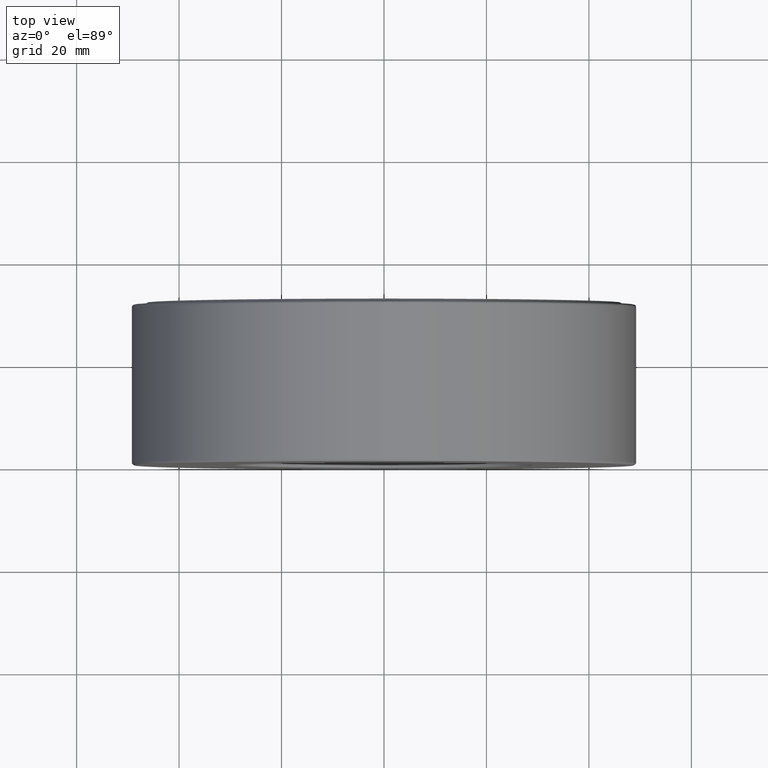
[diagram: clean part render]
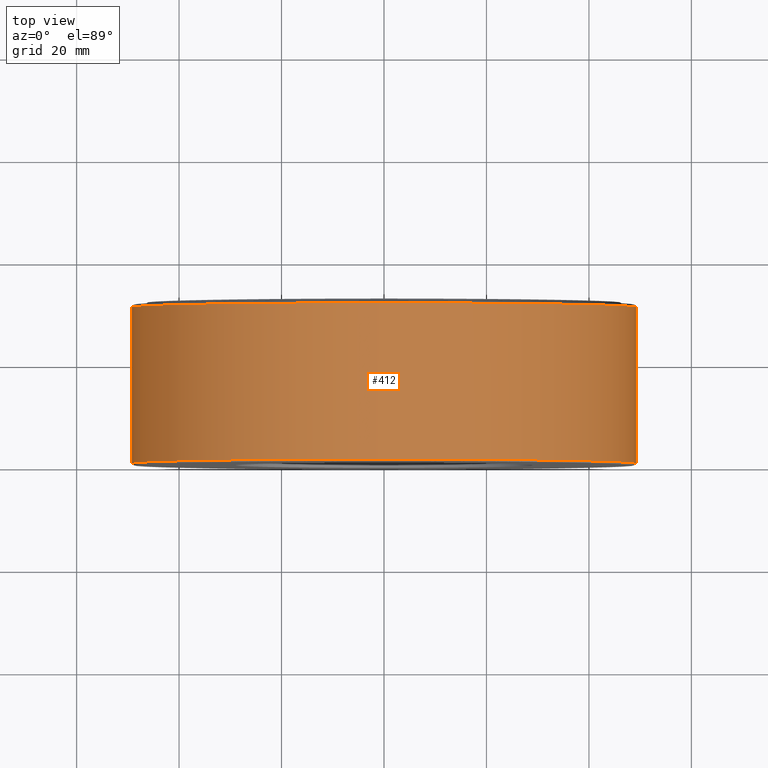
[diagram: same view with one face highlighted and labeled with its STEP entity id]
A machine part, top view. The second image highlights one B-rep face of the part: STEP entity #412.
In plain terms, the highlighted cylindrical surface (bore or boss wall) has radius 49.2125 mm, axis along (-0, 1, -0).
Its self-contained STEP definition (entity closure, byte-faithful):
#16 = DIRECTION ( 'NONE',  ( 0.0000000000000000000, 0.0000000000000000000, 1.000000000000000000 ) ) ;
#74 = EDGE_CURVE ( 'NONE', #314, #314, #508, .T. ) ;
#81 = DIRECTION ( 'NONE',  ( 0.0000000000000000000, 0.0000000000000000000, 1.000000000000000000 ) ) ;
#105 = CARTESIAN_POINT ( 'NONE',  ( 0.0000000000000000000, 0.01499999999999997700, 0.0000000000000000000 ) ) ;
#113 = VERTEX_POINT ( 'NONE', #369 ) ;
#127 = EDGE_LOOP ( 'NONE', ( #589 ) ) ;
#149 = AXIS2_PLACEMENT_3D ( 'NONE', #105, #330, #423 ) ;
#191 = CYLINDRICAL_SURFACE ( 'NONE', #275, 1.937499999999999800 ) ;
#253 = DIRECTION ( 'NONE',  ( -0.0000000000000000000, 1.000000000000000000, -0.0000000000000000000 ) ) ;
#275 = AXIS2_PLACEMENT_3D ( 'NONE', #355, #308, #81 ) ;
#281 = CIRCLE ( 'NONE', #476, 1.937500000000000000 ) ;
#308 = DIRECTION ( 'NONE',  ( -0.0000000000000000000, 1.000000000000000000, -0.0000000000000000000 ) ) ;
#310 = CARTESIAN_POINT ( 'NONE',  ( 0.0000000000000000000, 0.01499999999999997700, 1.937499999999999800 ) ) ;
#314 = VERTEX_POINT ( 'NONE', #310 ) ;
#315 = EDGE_CURVE ( 'NONE', #113, #113, #281, .T. ) ;
#330 = DIRECTION ( 'NONE',  ( -0.0000000000000000000, 1.000000000000000000, -0.0000000000000000000 ) ) ;
#338 = FACE_OUTER_BOUND ( 'NONE', #127, .T. ) ;
#355 = CARTESIAN_POINT ( 'NONE',  ( 0.0000000000000000000, 0.0000000000000000000, 0.0000000000000000000 ) ) ;
#367 = ORIENTED_EDGE ( 'NONE', *, *, #74, .T. ) ;
#369 = CARTESIAN_POINT ( 'NONE',  ( 0.0000000000000000000, 1.215000000000000100, 1.937500000000000000 ) ) ;
#406 = EDGE_LOOP ( 'NONE', ( #367 ) ) ;
#412 = ADVANCED_FACE ( 'NONE', ( #338, #555 ), #191, .T. ) ;
#423 = DIRECTION ( 'NONE',  ( 0.0000000000000000000, 0.0000000000000000000, 1.000000000000000000 ) ) ;
#432 = CARTESIAN_POINT ( 'NONE',  ( 0.0000000000000000000, 1.215000000000000100, 0.0000000000000000000 ) ) ;
#476 = AXIS2_PLACEMENT_3D ( 'NONE', #432, #253, #16 ) ;
#508 = CIRCLE ( 'NONE', #149, 1.937499999999999800 ) ;
#555 = FACE_OUTER_BOUND ( 'NONE', #406, .T. ) ;
#589 = ORIENTED_EDGE ( 'NONE', *, *, #315, .F. ) ;